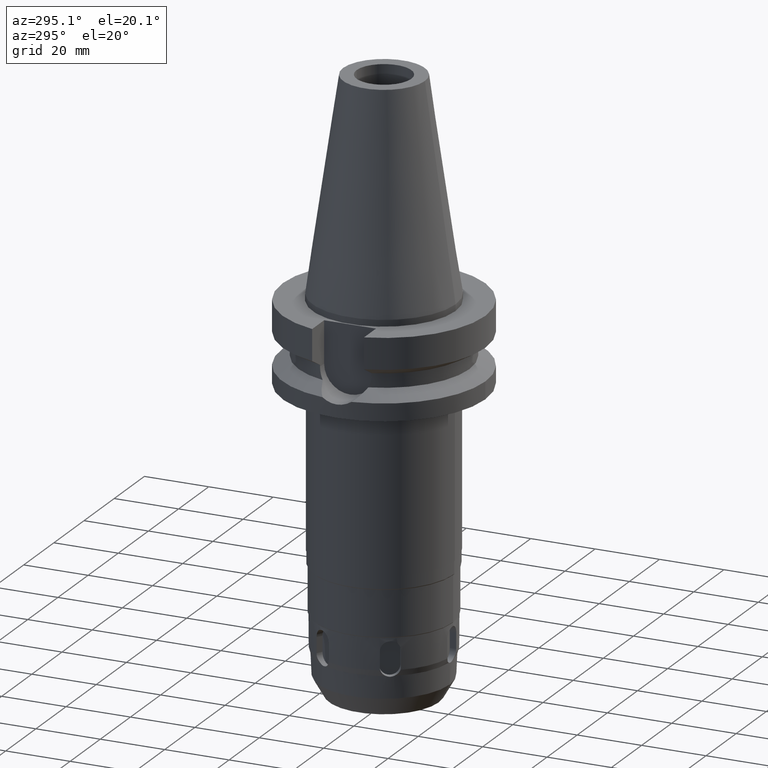
[diagram: clean part render]
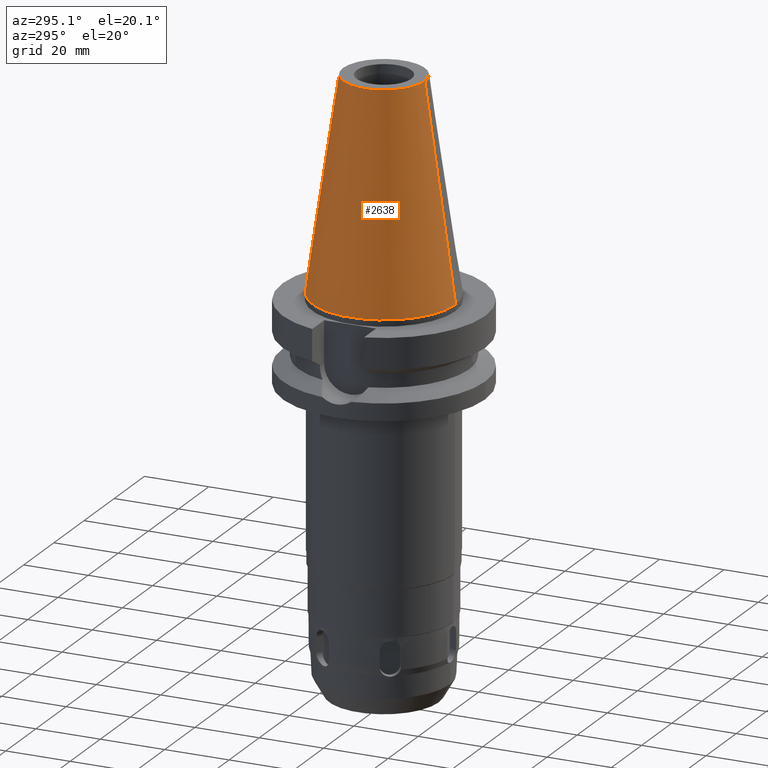
[diagram: same view with one face highlighted and labeled with its STEP entity id]
A machine part, auxiliary view. The second image highlights one B-rep face of the part: STEP entity #2638.
In plain terms, the highlighted conical surface has half-angle 8.297 deg.
Its self-contained STEP definition (entity closure, byte-faithful):
#17=CARTESIAN_POINT('',(0.E0,1.625106302469E-14,6.54E1));
#18=DIRECTION('',(0.E0,0.E0,-1.E0));
#19=DIRECTION('',(0.E0,-1.E0,0.E0));
#20=AXIS2_PLACEMENT_3D('',#17,#18,#19);
#50=DIRECTION('',(0.E0,-1.443043893540E-1,-9.895333461856E-1));
#51=VECTOR('',#50,6.609175956738E1);
#52=CARTESIAN_POINT('',(0.E0,-1.268766899430E1,6.54E1));
#53=LINE('',#52,#51);
#57=CARTESIAN_POINT('',(0.E0,1.625106302469E-14,2.842170943040E-14));
#58=DIRECTION('',(0.E0,0.E0,-1.E0));
#59=DIRECTION('',(0.E0,-1.E0,0.E0));
#60=AXIS2_PLACEMENT_3D('',#57,#58,#59);
#65=DIRECTION('',(0.E0,1.443043893540E-1,-9.895333461856E-1));
#66=VECTOR('',#65,6.609175956738E1);
#67=CARTESIAN_POINT('',(0.E0,1.268766899430E1,6.54E1));
#68=LINE('',#67,#66);
#2283=CARTESIAN_POINT('',(0.E0,-1.268766899430E1,6.54E1));
#2284=CARTESIAN_POINT('',(0.E0,1.268766899430E1,6.54E1));
#2285=VERTEX_POINT('',#2283);
#2286=VERTEX_POINT('',#2284);
#2558=CARTESIAN_POINT('',(0.E0,2.2225E1,6.394884621841E-14));
#2559=VERTEX_POINT('',#2558);
#2560=CARTESIAN_POINT('',(0.E0,-2.2225E1,6.394884621841E-14));
#2561=VERTEX_POINT('',#2560);
#2624=CARTESIAN_POINT('',(0.E0,1.625106302469E-14,3.27E1));
#2625=DIRECTION('',(0.E0,0.E0,-1.E0));
#2626=DIRECTION('',(0.E0,-1.E0,0.E0));
#2627=AXIS2_PLACEMENT_3D('',#2624,#2625,#2626);
#2628=CONICAL_SURFACE('',#2627,1.745633449715E1,8.297E0);
#2630=ORIENTED_EDGE('',*,*,#2629,.F.);
#2631=ORIENTED_EDGE('',*,*,#2611,.F.);
#2633=ORIENTED_EDGE('',*,*,#2632,.T.);
#2635=ORIENTED_EDGE('',*,*,#2634,.T.);
#2636=EDGE_LOOP('',(#2630,#2631,#2633,#2635));
#2637=FACE_OUTER_BOUND('',#2636,.F.);
#21=CIRCLE('',#20,1.268766899430E1);
#61=CIRCLE('',#60,2.2225E1);
#2611=EDGE_CURVE('',#2285,#2286,#21,.T.);
#2629=EDGE_CURVE('',#2286,#2559,#68,.T.);
#2632=EDGE_CURVE('',#2285,#2561,#53,.T.);
#2634=EDGE_CURVE('',#2561,#2559,#61,.T.);
#2638=ADVANCED_FACE('',(#2637),#2628,.T.);